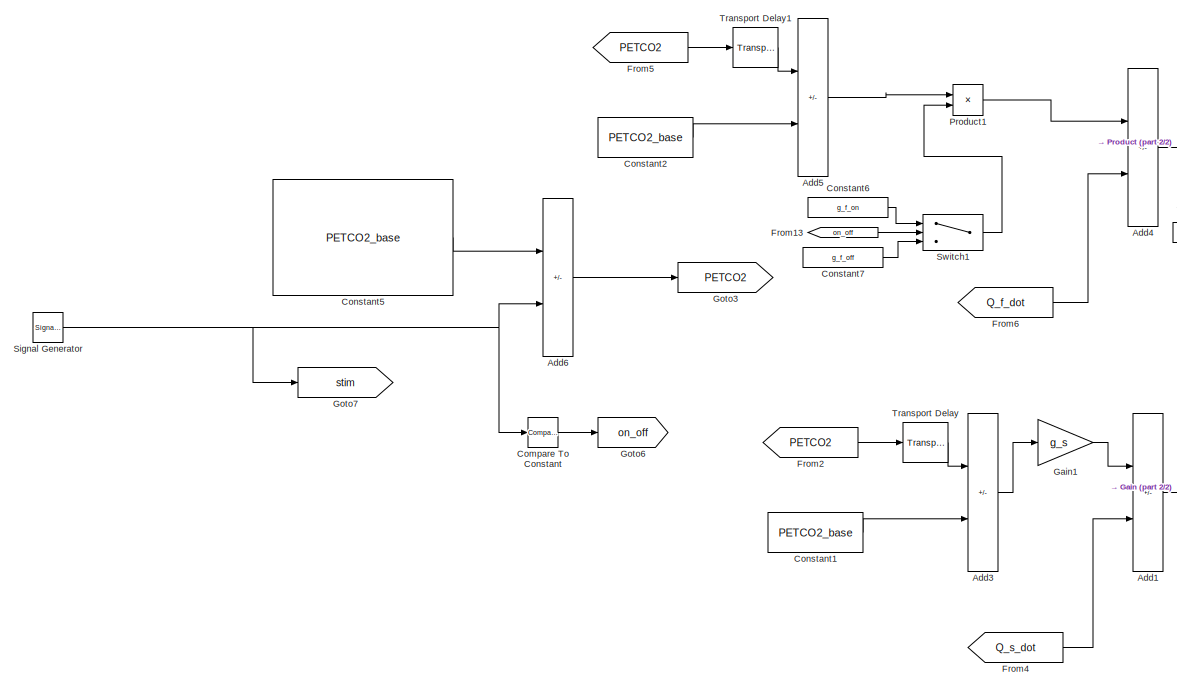
[diagram: root canvas - part 1/2, left side, full height]
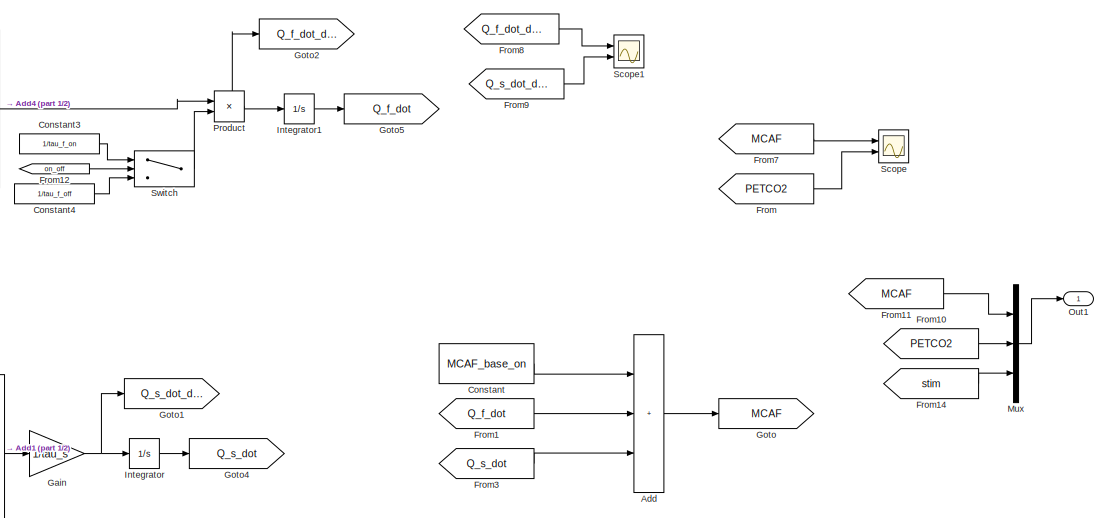
[diagram: root canvas - part 2/2, middle right region]
MODEL slx_d85d7c2c69aa
KIND model
CONFIG AbsTol = auto
CONFIG EnableMultiTasking = off
CONFIG FixedStep = 0.01
CONFIG MaxStep = auto
CONFIG MinStep = auto
CONFIG RelTol = 1e-3
CONFIG SampleTimeConstraint = Unconstrained
CONFIG SolverName = ode4
CONFIG StartTime = 0.0
CONFIG StopTime = 6000
BLOCK [Sum] Add
  IconShape = rectangular
  Inputs = +++
  Ports = [3, 1]
BLOCK [Sum] Add1
  IconShape = rectangular
  Inputs = +-
  Ports = [2, 1]
BLOCK [Sum] Add3
  IconShape = rectangular
  Inputs = +-
  Ports = [2, 1]
BLOCK [Sum] Add4
  IconShape = rectangular
  Inputs = +-
  Ports = [2, 1]
BLOCK [Sum] Add5
  IconShape = rectangular
  Inputs = +-
  Ports = [2, 1]
BLOCK [Sum] Add6
  IconShape = rectangular
  Inputs = +-
  Ports = [2, 1]
BLOCK [Reference] Compare To Constant  REF=simulink/Logic and Bit
Operations/Compare
To Constant
  Ports = [1, 1]
  SourceBlock = simulink/Logic and Bit\nOperations/Compare\nTo Constant
  SourceProductBaseCode = SL
  SourceType = Compare To Constant
BLOCK [Constant] Constant
  Value = MCAF_base_on
BLOCK [Constant] Constant1
  Value = PETCO2_base
BLOCK [Constant] Constant2
  Value = PETCO2_base
BLOCK [Constant] Constant3
  Value = 1/tau_f_on
BLOCK [Constant] Constant4
  Value = 1/tau_f_off
BLOCK [Constant] Constant5
  Value = PETCO2_base
BLOCK [Constant] Constant6
  Value = g_f_on
BLOCK [Constant] Constant7
  Value = g_f_off
BLOCK [From] From
  GotoTag = PETCO2
BLOCK [From] From1
  GotoTag = Q_f_dot
BLOCK [From] From10
  GotoTag = PETCO2
BLOCK [From] From11
  GotoTag = MCAF
BLOCK [From] From12
  GotoTag = on_off
BLOCK [From] From13
  GotoTag = on_off
BLOCK [From] From14
  GotoTag = stim
BLOCK [From] From2
  GotoTag = PETCO2
BLOCK [From] From3
  GotoTag = Q_s_dot
BLOCK [From] From4
  GotoTag = Q_s_dot
BLOCK [From] From5
  GotoTag = PETCO2
BLOCK [From] From6
  GotoTag = Q_f_dot
BLOCK [From] From7
  GotoTag = MCAF
BLOCK [From] From8
  GotoTag = Q_f_dot_dot
BLOCK [From] From9
  GotoTag = Q_s_dot_dot
BLOCK [Gain] Gain
  Gain = 1/tau_s
BLOCK [Gain] Gain1
  Gain = g_s
BLOCK [Goto] Goto
  GotoTag = MCAF
BLOCK [Goto] Goto1
  GotoTag = Q_s_dot_dot
BLOCK [Goto] Goto2
  GotoTag = Q_f_dot_dot
BLOCK [Goto] Goto3
  GotoTag = PETCO2
BLOCK [Goto] Goto4
  GotoTag = Q_s_dot
BLOCK [Goto] Goto5
  GotoTag = Q_f_dot
BLOCK [Goto] Goto6
  GotoTag = on_off
BLOCK [Goto] Goto7
  GotoTag = stim
BLOCK [Integrator] Integrator
  Ports = [1, 1]
BLOCK [Integrator] Integrator1
  Ports = [1, 1]
BLOCK [Mux] Mux
  DisplayOption = bar
  Inputs = 3
  Ports = [3, 1]
BLOCK [Outport] Out1
BLOCK [Product] Product
  Ports = [2, 1]
BLOCK [Product] Product1
  Ports = [2, 1]
BLOCK [Scope] Scope
  Floating = off
  NumInputPorts = 2
  Ports = [2]
  ScopeSpecificationString = Simulink.scopes.TimeScopeBlockCfg('CurrentConfiguration', extmgr.ConfigurationSet(extmgr.Configuration('Core','General UI',true),extmgr.Configuration('Core','Source UI',true),extmgr.Configuration('Sources','WiredSimulink',true),extmgr.Configuration('Visuals','Time Domain',true,'SerializedDisplays',{struct('MinYLimReal','100.89995','MaxYLimReal','101.329','YLabelReal','','MinYLimMag','100.89995','M...<+1957ch>
BLOCK [Scope] Scope1
  Floating = off
  NumInputPorts = 2
  Ports = [2]
  ScopeSpecificationString = Simulink.scopes.TimeScopeBlockCfg('CurrentConfiguration', extmgr.ConfigurationSet(extmgr.Configuration('Core','General UI',true),extmgr.Configuration('Core','Source UI',true),extmgr.Configuration('Sources','WiredSimulink',true,'DataLoggingVariableName','ScopeData1'),extmgr.Configuration('Visuals','Time Domain',true,'SerializedDisplays',{struct('MinYLimReal','-0.79381','MaxYLimReal','0.79381','YLab...<+1986ch>
BLOCK [SignalGenerator] Signal Generator
  Amplitude = 2
  Frequency = stimHz
  Ports = [0, 1]
BLOCK [Switch] Switch
  Criteria = u2 > Threshold
  InputSameDT = off
  SaturateOnIntegerOverflow = off
BLOCK [Switch] Switch1
  Criteria = u2 > Threshold
  InputSameDT = off
  SaturateOnIntegerOverflow = off
BLOCK [TransportDelay] Transport Delay
  DelayTime = Td
  Ports = [1, 1]
BLOCK [TransportDelay] Transport Delay1
  DelayTime = Td
  Ports = [1, 1]
LINE Add1:1 -> Gain:1
LINE Add3:1 -> Gain1:1
LINE Add4:1 -> Product:1
LINE Add5:1 -> Product1:1
LINE Add6:1 -> Goto3:1
LINE Add:1 -> Goto:1
LINE Compare To Constant:1 -> Goto6:1
LINE Constant1:1 -> Add3:2
LINE Constant2:1 -> Add5:2
LINE Constant3:1 -> Switch:1
LINE Constant4:1 -> Switch:3
LINE Constant5:1 -> Add6:1
LINE Constant6:1 -> Switch1:1
LINE Constant7:1 -> Switch1:3
LINE Constant:1 -> Add:1
LINE From10:1 -> Mux:2
LINE From11:1 -> Mux:1
LINE From12:1 -> Switch:2
LINE From13:1 -> Switch1:2
LINE From14:1 -> Mux:3
LINE From1:1 -> Add:2
LINE From2:1 -> Transport Delay:1
LINE From3:1 -> Add:3
LINE From4:1 -> Add1:2
LINE From5:1 -> Transport Delay1:1
LINE From6:1 -> Add4:2
LINE From7:1 -> Scope:1
LINE From8:1 -> Scope1:1
LINE From9:1 -> Scope1:2
LINE From:1 -> Scope:2
LINE Gain1:1 -> Add1:1
NET Gain:1 -> Goto1:1, Integrator:1
LINE Integrator1:1 -> Goto5:1
LINE Integrator:1 -> Goto4:1
LINE Mux:1 -> Out1:1
LINE Product1:1 -> Add4:1
NET Product:1 -> Goto2:1, Integrator1:1
NET Signal Generator:1 -> Add6:2, Compare To Constant:1, Goto7:1
LINE Switch1:1 -> Product1:2
LINE Switch:1 -> Product:2
LINE Transport Delay1:1 -> Add5:1
LINE Transport Delay:1 -> Add3:1
note: NET lines group one-source signal fan-out (src -> all destinations, sorted); 1:1 wires keep LINE
